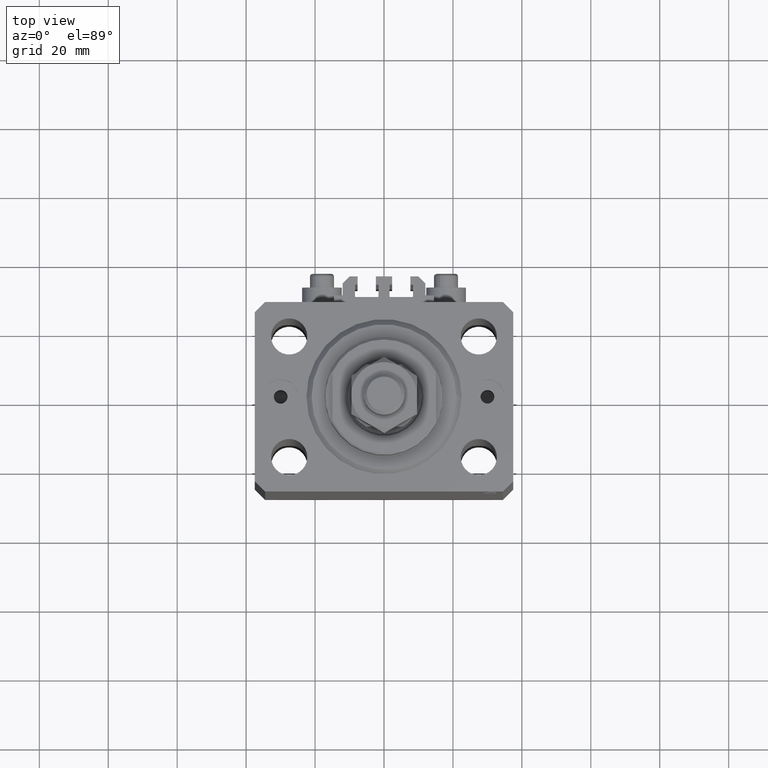
[diagram: clean part render]
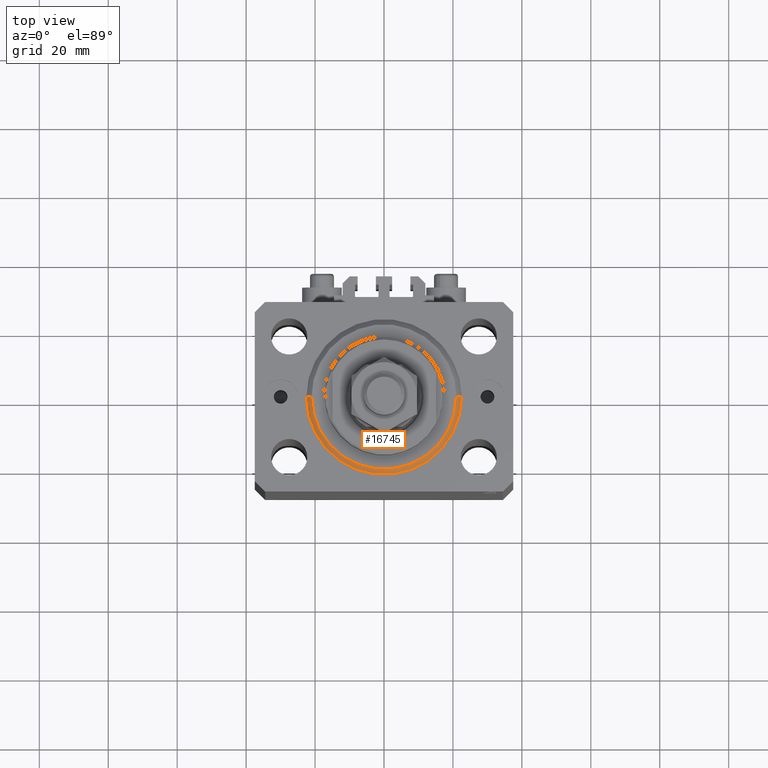
[diagram: same view with one face highlighted and labeled with its STEP entity id]
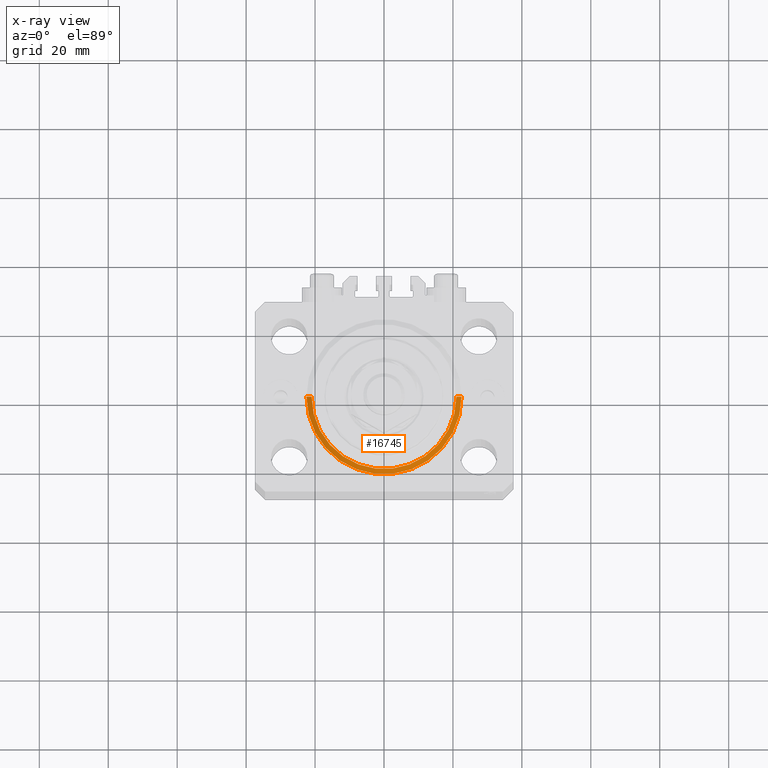
[diagram: x-ray of the same camera — body ghosted, the highlighted face saturated]
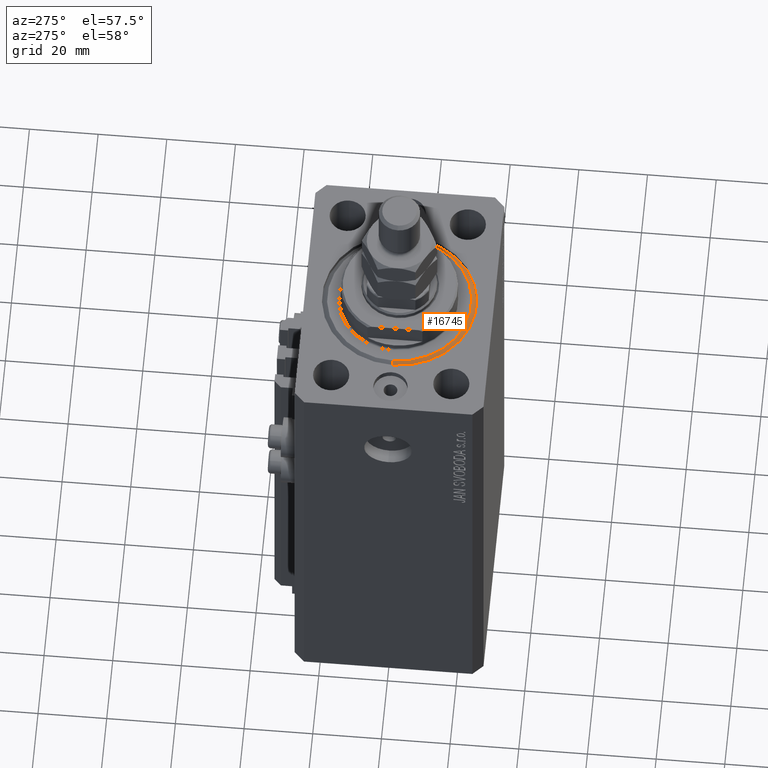
[diagram: same view with one face highlighted and labeled with its STEP entity id]
A machine part, top view. The second image highlights one B-rep face of the part: STEP entity #16745.
The next image is the same camera in x-ray: the body ghosted, the highlighted face saturated — about 0% of this face is hidden behind the body in this view.
A second angle (auxiliary view) of the same face is appended — the face is thin or edge-on in the first view.
In plain terms, the highlighted conical surface has half-angle 45 deg.
Its self-contained STEP definition (entity closure, byte-faithful):
#1452 = VECTOR ( 'NONE', #39174, 1000.000000000000114 ) ;
#1899 = AXIS2_PLACEMENT_3D ( 'NONE', #35943, #17188, #13498 ) ;
#2064 = VERTEX_POINT ( 'NONE', #6858 ) ;
#3415 = CARTESIAN_POINT ( 'NONE',  ( 0.000000000000000000, 0.000000000000000000, 1.500000000000039524 ) ) ;
#3546 = CARTESIAN_POINT ( 'NONE',  ( 20.99999999999995381, 0.000000000000000000, 0.000000000000000000 ) ) ;
#6858 = CARTESIAN_POINT ( 'NONE',  ( 22.50000000000000355, 2.755455298081544383E-15, 1.500000000000039524 ) ) ;
#7812 = EDGE_CURVE ( 'NONE', #21918, #29962, #39453, .T. ) ;
#10577 = DIRECTION ( 'NONE',  ( 1.000000000000000000, 0.000000000000000000, 0.000000000000000000 ) ) ;
#12689 = ORIENTED_EDGE ( 'NONE', *, *, #7812, .F. ) ;
#13498 = DIRECTION ( 'NONE',  ( 1.000000000000000000, 0.000000000000000000, 0.000000000000000000 ) ) ;
#16745 = ADVANCED_FACE ( 'NONE', ( #20902 ), #17661, .T. ) ;
#17188 = DIRECTION ( 'NONE',  ( -0.000000000000000000, -0.000000000000000000, 1.000000000000000000 ) ) ;
#17661 = CONICAL_SURFACE ( 'NONE', #1899, 22.50000000000000355, 0.7853981633974517207 ) ;
#20254 = VERTEX_POINT ( 'NONE', #3546 ) ;
#20902 = FACE_OUTER_BOUND ( 'NONE', #46799, .T. ) ;
#21887 = EDGE_CURVE ( 'NONE', #20254, #2064, #42894, .T. ) ;
#21918 = VERTEX_POINT ( 'NONE', #35961 ) ;
#24130 = CARTESIAN_POINT ( 'NONE',  ( 22.50000000000000355, 0.000000000000000000, 1.500000000000039524 ) ) ;
#25219 = EDGE_CURVE ( 'NONE', #20254, #21918, #38390, .T. ) ;
#25654 = DIRECTION ( 'NONE',  ( -0.000000000000000000, -0.000000000000000000, -1.000000000000000000 ) ) ;
#28345 = DIRECTION ( 'NONE',  ( -0.7071067811865500152, 8.659560562354962440E-17, 0.7071067811865451302 ) ) ;
#29962 = VERTEX_POINT ( 'NONE', #37311 ) ;
#30865 = EDGE_CURVE ( 'NONE', #29962, #2064, #42410, .T. ) ;
#31557 = CARTESIAN_POINT ( 'NONE',  ( -22.50000000000000355, 2.755455298081545172E-15, 1.500000000000039524 ) ) ;
#32667 = ORIENTED_EDGE ( 'NONE', *, *, #30865, .F. ) ;
#33526 = CARTESIAN_POINT ( 'NONE',  ( 0.000000000000000000, 0.000000000000000000, 0.000000000000000000 ) ) ;
#33671 = AXIS2_PLACEMENT_3D ( 'NONE', #33526, #25654, #10577 ) ;
#35943 = CARTESIAN_POINT ( 'NONE',  ( 0.000000000000000000, 0.000000000000000000, 1.500000000000039524 ) ) ;
#35961 = CARTESIAN_POINT ( 'NONE',  ( -20.99999999999995381, 2.663606788145490261E-15, 0.000000000000000000 ) ) ;
#36724 = DIRECTION ( 'NONE',  ( -0.000000000000000000, -0.000000000000000000, 1.000000000000000000 ) ) ;
#37311 = CARTESIAN_POINT ( 'NONE',  ( -22.50000000000000355, 0.000000000000000000, 1.500000000000039524 ) ) ;
#38390 = CIRCLE ( 'NONE', #33671, 20.99999999999995381 ) ;
#39174 = DIRECTION ( 'NONE',  ( 0.7071067811865500152, 0.000000000000000000, 0.7071067811865451302 ) ) ;
#39453 = LINE ( 'NONE', #31557, #41085 ) ;
#41085 = VECTOR ( 'NONE', #28345, 1000.000000000000114 ) ;
#42410 = CIRCLE ( 'NONE', #43169, 22.50000000000000355 ) ;
#42894 = LINE ( 'NONE', #24130, #1452 ) ;
#43169 = AXIS2_PLACEMENT_3D ( 'NONE', #3415, #36724, #48570 ) ;
#43621 = ORIENTED_EDGE ( 'NONE', *, *, #21887, .T. ) ;
#43997 = ORIENTED_EDGE ( 'NONE', *, *, #25219, .F. ) ;
#46799 = EDGE_LOOP ( 'NONE', ( #12689, #43997, #43621, #32667 ) ) ;
#48570 = DIRECTION ( 'NONE',  ( 1.000000000000000000, 0.000000000000000000, 0.000000000000000000 ) ) ;